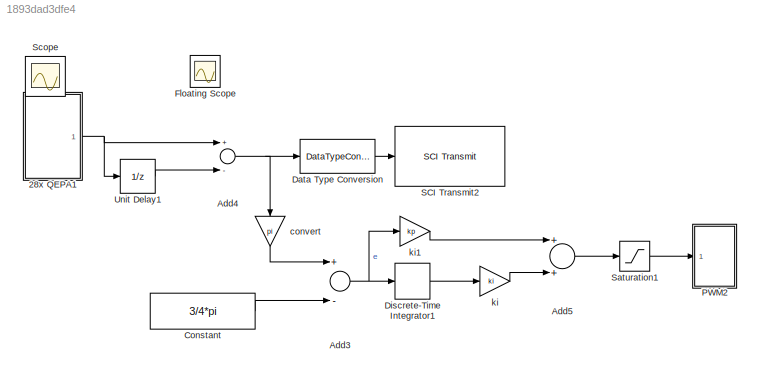
MODEL slx_1893dad3dfe4
KIND model
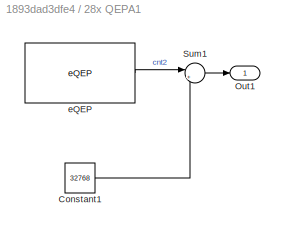
BLOCK [SubSystem] 28x QEPA1
  FunctionWithSeparateData = off
  MaskHideContents = off
  MinAlgLoopOccurrences = off
  Opaque = off
  Ports = [0, 1]
  PropExecContextOutsideSubsystem = off
  RTWSystemCode = Auto
  RequestExecContextInheritance = off
BLOCK [Constant] 28x QEPA1/Constant1
  Value = 32768
BLOCK [Outport] 28x QEPA1/Out1
  IconDisplay = Port number
BLOCK [Sum] 28x QEPA1/Sum1
  IconShape = round
  InputSameDT = off
  Inputs = |+-
  OutDataTypeStr = Inherit: Inherit via internal rule
  Ports = [2, 1]
  SaturateOnIntegerOverflow = off
BLOCK [Reference] 28x QEPA1/eQEP  REF=c280xlib/eQEP
  Ports = [0, 1]
  SourceBlock = c280xlib/eQEP
  SourceType = C28x eQEP
  capturePeriodlatch = off
  captureTimerlatch = off
  captureTimerposition = On position counter read
  captureTimerprescaler = 128
  compareValue = 4294967295
  compareValuesource = Specify via dialog
  directionErrorflag = off
  enableEqepcapture = off
  eqepinterrupt_iel = off
  eqepinterrupt_pce = off
  eqepinterrupt_pcm = off
  eqepinterrupt_pco = off
  eqepinterrupt_pcr = off
  eqepinterrupt_pcu = off
  eqepinterrupt_qdc = off
  eqepinterrupt_qpe = off
  eqepinterrupt_sel = off
  eqepinterrupt_uto = off
  eqepinterrupt_wto = off
  externalClockrate = 2x resolution: Count the rising/falling edge
  ieloutputport = off
  igatePolarityselection = off
  indexEventlatch = Rising edge
  indexInitializationcheck = off
  indexInitializationevent = Rising edge
  outport10Datatype = auto
  outport11Datatype = auto
  outport12Datatype = auto
  outport13Datatype = auto
  outport14Datatype = auto
  outport1Datatype = auto
  outport2Datatype = auto
  outport3Datatype = auto
  outport4Datatype = auto
  outport5Datatype = auto
  outport6Datatype = auto
  outport7Datatype = auto
  outport8Datatype = auto
  outport9Datatype = auto
  overflowErrorflag = off
  pcInitialvalue = 32768
  pcInputmode = Quadrature-count
  pcMaximumvalue = 4294967295
  pcOutputport = on
  pcResetmode = Reset on an index event
  pcefOutputport = off
  pheOutputport = off
  polaritySyncoutput = Active high
  positionCounterlatch = off
  qapPolarityselection = off
  qbpPolarityselection = off
  qcprdOutputport = off
  qctmrOutputport = off
  qdfOutputport = off
  qipPolarityselection = off
  qspPolarityselection = off
  sampleTime = 0.001
  seloutputport = off
  shadowMode = Load on QPOSCNT=0
  soenPolarityselection = off
  softwareInitializationcheck = on
  softwareInitializationmode = on
  softwareInitializationsource = Set to init value at start up
  spselPolarityselection = Index pin is used for sync output
  strobeEventlatch = Rising edge
  strobeInitializationcheck = off
  strobeInitializationevent = Rising edge
  swapPolarityselection = Clockwise
  syncOutputwidth = 1
  unitTimerperiod = 100000000
  upEventprescaler = 128
  useModule = eQEP2
  watchdogEnable = off
  watchdogOutputport = off
  watchdogTimer = 65535
BLOCK [Sum] Add3
  InputSameDT = off
  Inputs = +-
  OutDataTypeStr = Inherit: Inherit via internal rule
  Ports = [2, 1]
  SaturateOnIntegerOverflow = off
BLOCK [Sum] Add4
  InputSameDT = off
  Inputs = +-
  OutDataTypeStr = Inherit: Inherit via internal rule
  Ports = [2, 1]
  SaturateOnIntegerOverflow = off
BLOCK [Sum] Add5
  InputSameDT = off
  OutDataTypeStr = Inherit: Inherit via internal rule
  Ports = [2, 1]
  SaturateOnIntegerOverflow = off
BLOCK [Constant] Constant
  Value = 3/4*pi
BLOCK [DataTypeConversion] Data Type Conversion
  OutDataTypeStr = uint16
  RndMeth = Floor
  SaturateOnIntegerOverflow = off
BLOCK [DiscreteIntegrator] Discrete-Time Integrator1
  ICPrevOutput = DiscIntNeverNeededParam
  ICPrevScaledInput = DiscIntNeverNeededParam
  Ports = [1, 1]
  SampleTime = 0.001
BLOCK [Scope] Floating Scope
  Floating = off
  IOType = viewer
  NumInputPorts = 1
  Ports = []
  ShowLegends = off
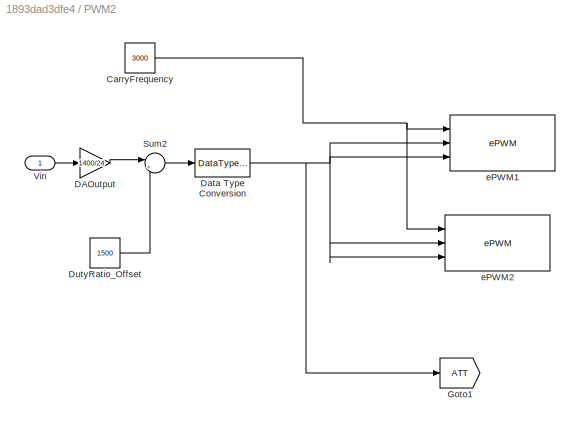
BLOCK [SubSystem] PWM2
  FunctionWithSeparateData = off
  MaskHideContents = off
  MinAlgLoopOccurrences = off
  Opaque = off
  Ports = [1]
  PropExecContextOutsideSubsystem = off
  RTWSystemCode = Auto
  RequestExecContextInheritance = off
BLOCK [Constant] PWM2/CarryFrequency
  OutDataTypeStr = uint16
  Value = 3000
BLOCK [Gain] PWM2/DAOutput
  Gain = 1400/24
BLOCK [DataTypeConversion] PWM2/Data Type Conversion
BLOCK [Constant] PWM2/DutyRatio_Offset
  Value = 1500
BLOCK [Goto] PWM2/Goto1
  GotoTag = ATT
  TagVisibility = global
BLOCK [Sum] PWM2/Sum2
  IconShape = round
  InputSameDT = off
  Inputs = |++
  OutDataTypeStr = Inherit: Inherit via internal rule
  Ports = [2, 1]
BLOCK [Inport] PWM2/Vin
  IconDisplay = Port number
BLOCK [Reference] PWM2/ePWM1  REF=c280xlib/ePWM
  CMPASource = Input port
  CMPAUnits = Clock cycles
  CMPAValue_clk = 1500
  CMPAValue_per = 50
  CMPBSource = Input port
  CMPBUnits = Clock cycles
  CMPBValue_clk = 1500
  CMPBValue_per = 50
  DBSource_ePWMxA = ePWMxA
  DBSource_ePWMxB = ePWMxA
  DBedgeDelay = Positive
  DBperiodSource = Specify via dialog
  DBpolarity = Active high complementary (AHC)
  FEDperiod = 102
  HRPWM_CTLMode = Phase control mode
  HRPWM_EDGMode = Both edge
  HRPWM_LoadMode = Counter equals to zero (CTR=ZERO)
  HSclockPrescale = 1
  Ports = [3]
  REDperiod = 102
  SourceBlock = c280xlib/ePWM
  SourceType = C280x/C2833x ePWM
  adcrequestEventA = First event
  adcrequestEventB = First event
  adcstartEventA = Counter equals to zero (CTR=Zero)
  adcstartEventB = Counter equals to zero (CTR=Zero)
  adcstartModuleA = off
  adcstartModuleB = off
  checkMode = off
  chopperDuty = 12.5%
  chopperEnable = off
  chopperFirstwidth = 1
  chopperFrequency = 1
  clockPrescale = 1
  countingMode = Up
  ePWMxACSFenable = off
  ePWMxACSFvalue = Forcing disable
  ePWMxALoadMode = Load on counter equals to zero (CTR=Zero)
  ePWMxASFreload = Zero
  ePWMxAStatus = on
  ePWMxAValue = 0
  ePWMxAactionLogic1 = Do nothing
  ePWMxAactionLogic2 = Clear
  ePWMxAactionLogic3 = Set
  ePWMxAactionLogic4 = Do nothing
  ePWMxAactionLogic5 = Do nothing
  ePWMxAactionLogic6 = Do nothing
  ePWMxAforced = No action
  ePWMxBCSFenable = off
  ePWMxBCSFvalue = Forcing disable
  ePWMxBLoadMode = Load on counter equals to zero (CTR=Zero)
  ePWMxBSFreload = Zero
  ePWMxBStatus = on
  ePWMxBValue = 0
  ePWMxBactionLogic1 = Do nothing
  ePWMxBactionLogic2 = Set
  ePWMxBactionLogic3 = Do nothing
  ePWMxBactionLogic4 = Do nothing
  ePWMxBactionLogic5 = Clear
  ePWMxBactionLogic6 = Do nothing
  ePWMxBforced = No action
  enCMPAshadow = Counter equals to zero
  enCMPBshadow = Counter equals to zero
  enHRPWM = off
  enSFO = on
  enTzCbcIntr = off
  enTzOstIntr = off
  enableDBePWMxA = on
  enableDBePWMxB = on
  intEn = off
  intPrd = First event
  intSel = Counter equals to zero (CTR=Zero)
  periodUnits = Clock cycles
  phaseActive = 0
  phaseActiveEnable = Disable
  phaseDirection = Count down after sync
  synchronizationEnable = off
  synchronizationOption = Disable
  tbshadow = Counter equals to zero
  timerPeriod = -1
  timerPeriod_clk = 3000
  timerPeriod_sec = 0.0001
  timerSource = Input port
  tripZoneoption = One-shot trip (OSHT)
  tripZonesource = Specify via dialog
  tzselCBC1 = off
  tzselCBC2 = off
  tzselCBC3 = off
  tzselCBC4 = off
  tzselCBC5 = off
  tzselCBC6 = off
  tzselOSHT1 = off
  tzselOSHT2 = off
  tzselOSHT3 = off
  tzselOSHT4 = off
  tzselOSHT5 = off
  tzselOSHT6 = off
  useModule = ePWM1
BLOCK [Reference] PWM2/ePWM2  REF=c280xlib/ePWM
  CMPASource = Input port
  CMPAUnits = Clock cycles
  CMPAValue_clk = 1500
  CMPAValue_per = 50
  CMPBSource = Input port
  CMPBUnits = Clock cycles
  CMPBValue_clk = 1500
  CMPBValue_per = 50
  DBSource_ePWMxA = ePWMxA
  DBSource_ePWMxB = ePWMxA
  DBedgeDelay = Positive
  DBperiodSource = Specify via dialog
  DBpolarity = Active high complementary (AHC)
  FEDperiod = 204
  HRPWM_CTLMode = Phase control mode
  HRPWM_EDGMode = Both edge
  HRPWM_LoadMode = Counter equals to zero (CTR=ZERO)
  HSclockPrescale = 1
  Ports = [3]
  REDperiod = 204
  SourceBlock = c280xlib/ePWM
  SourceType = C280x/C2833x ePWM
  adcrequestEventA = First event
  adcrequestEventB = First event
  adcstartEventA = Counter equals to zero (CTR=Zero)
  adcstartEventB = Counter equals to zero (CTR=Zero)
  adcstartModuleA = off
  adcstartModuleB = off
  checkMode = off
  chopperDuty = 12.5%
  chopperEnable = off
  chopperFirstwidth = 1
  chopperFrequency = 1
  clockPrescale = 1
  countingMode = Up
  ePWMxACSFenable = off
  ePWMxACSFvalue = Forcing disable
  ePWMxALoadMode = Load on counter equals to zero (CTR=Zero)
  ePWMxASFreload = Zero
  ePWMxAStatus = on
  ePWMxAValue = 0
  ePWMxAactionLogic1 = Do nothing
  ePWMxAactionLogic2 = Clear
  ePWMxAactionLogic3 = Set
  ePWMxAactionLogic4 = Do nothing
  ePWMxAactionLogic5 = Do nothing
  ePWMxAactionLogic6 = Do nothing
  ePWMxAforced = No action
  ePWMxBCSFenable = off
  ePWMxBCSFvalue = Forcing disable
  ePWMxBLoadMode = Load on counter equals to zero (CTR=Zero)
  ePWMxBSFreload = Zero
  ePWMxBStatus = on
  ePWMxBValue = 0
  ePWMxBactionLogic1 = Do nothing
  ePWMxBactionLogic2 = Set
  ePWMxBactionLogic3 = Do nothing
  ePWMxBactionLogic4 = Do nothing
  ePWMxBactionLogic5 = Clear
  ePWMxBactionLogic6 = Do nothing
  ePWMxBforced = No action
  enCMPAshadow = Counter equals to zero
  enCMPBshadow = Counter equals to zero
  enHRPWM = off
  enSFO = on
  enTzCbcIntr = off
  enTzOstIntr = off
  enableDBePWMxA = on
  enableDBePWMxB = on
  intEn = off
  intPrd = First event
  intSel = Counter equals to zero (CTR=Zero)
  periodUnits = Clock cycles
  phaseActive = 0
  phaseActiveEnable = Disable
  phaseDirection = Count down after sync
  synchronizationEnable = off
  synchronizationOption = Disable
  tbshadow = Counter equals to zero
  timerPeriod = -1
  timerPeriod_clk = 3000
  timerPeriod_sec = 0.0001
  timerSource = Input port
  tripZoneoption = One-shot trip (OSHT)
  tripZonesource = Specify via dialog
  tzselCBC1 = off
  tzselCBC2 = off
  tzselCBC3 = off
  tzselCBC4 = off
  tzselCBC5 = off
  tzselCBC6 = off
  tzselOSHT1 = off
  tzselOSHT2 = off
  tzselOSHT3 = off
  tzselOSHT4 = off
  tzselOSHT5 = off
  tzselOSHT6 = off
  useModule = ePWM2
BLOCK [Reference] SCI Transmit2  REF=c280xlib/SCI Transmit
  Ports = [1]
  SourceBlock = c280xlib/SCI Transmit
  SourceType = C28x SCI Transmit
  dataHead = 222
  dataTail = 253
  numFifo = 0
  postInterrupt = on
  sciModule = A
BLOCK [Saturate] Saturation1
  InputPortMap = u0
  LowerLimit = -12
  Ports = [1, 1]
  UpperLimit = 12
BLOCK [Scope] Scope
  Floating = off
  IOType = viewer
  NumInputPorts = 1
  Ports = []
  ShowLegends = off
BLOCK [UnitDelay] Unit Delay1
  InputProcessing = Elements as channels (sample based)
  SampleTime = -1
BLOCK [Gain] convert
  Gain = pi
  OutDataTypeStr = Inherit: Inherit via internal rule
  ParamDataTypeStr = Inherit: Inherit via internal rule
  SampleTime = 0.001
  SaturateOnIntegerOverflow = off
BLOCK [Gain] ki
  Gain = ki
  OutDataTypeStr = Inherit: Inherit via internal rule
  ParamDataTypeStr = Inherit: Inherit via internal rule
  SampleTime = 0.001
  SaturateOnIntegerOverflow = off
BLOCK [Gain] ki1
  Gain = kp
  OutDataTypeStr = Inherit: Inherit via internal rule
  ParamDataTypeStr = Inherit: Inherit via internal rule
  SampleTime = 0.001
  SaturateOnIntegerOverflow = off
LINE 28x QEPA1/Constant1:1 -> 28x QEPA1/Sum1:2
LINE 28x QEPA1/Sum1:1 -> 28x QEPA1/Out1:1
LINE 28x QEPA1/eQEP:1 -> 28x QEPA1/Sum1:1
NET 28x QEPA1:1 -> Add4:1, Unit Delay1:1
NET Add3:1 -> Discrete-Time Integrator1:1, ki1:1
NET Add4:1 -> Data Type Conversion:1, convert:1
LINE Add5:1 -> Saturation1:1
LINE Constant:1 -> Add3:2
LINE Data Type Conversion:1 -> SCI Transmit2:1
LINE Discrete-Time Integrator1:1 -> ki:1
NET PWM2/CarryFrequency:1 -> PWM2/ePWM1:1, PWM2/ePWM2:1
LINE PWM2/DAOutput:1 -> PWM2/Sum2:1
NET PWM2/Data Type Conversion:1 -> PWM2/Goto1:1, PWM2/ePWM1:2, PWM2/ePWM1:3, PWM2/ePWM2:2, PWM2/ePWM2:3
LINE PWM2/DutyRatio_Offset:1 -> PWM2/Sum2:2
LINE PWM2/Sum2:1 -> PWM2/Data Type Conversion:1
LINE PWM2/Vin:1 -> PWM2/DAOutput:1
LINE Saturation1:1 -> PWM2:1
LINE Unit Delay1:1 -> Add4:2
LINE convert:1 -> Add3:1
LINE ki1:1 -> Add5:1
LINE ki:1 -> Add5:2
note: NET lines group one-source signal fan-out (src -> all destinations, sorted); 1:1 wires keep LINE
